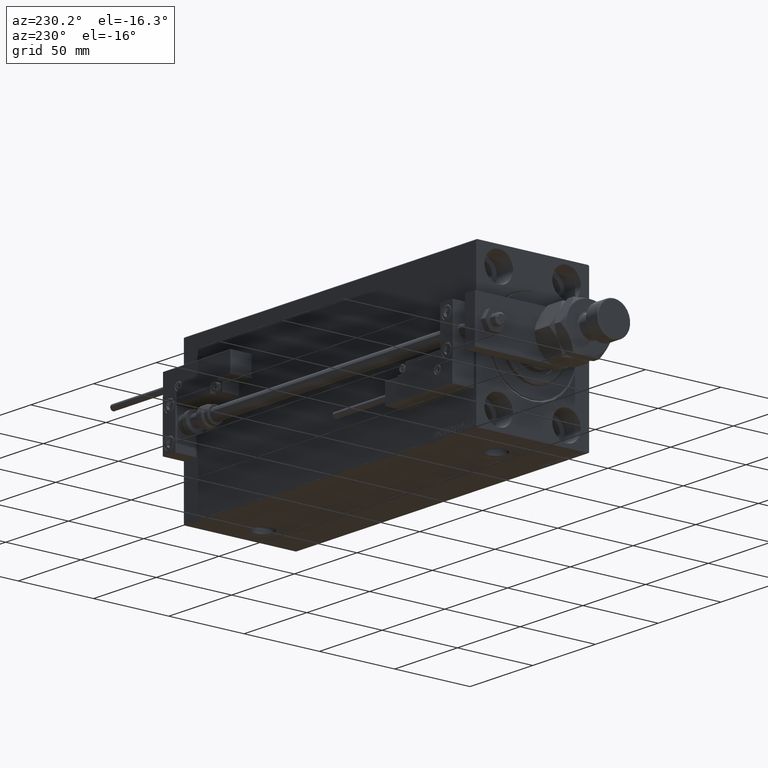
[diagram: clean part render]
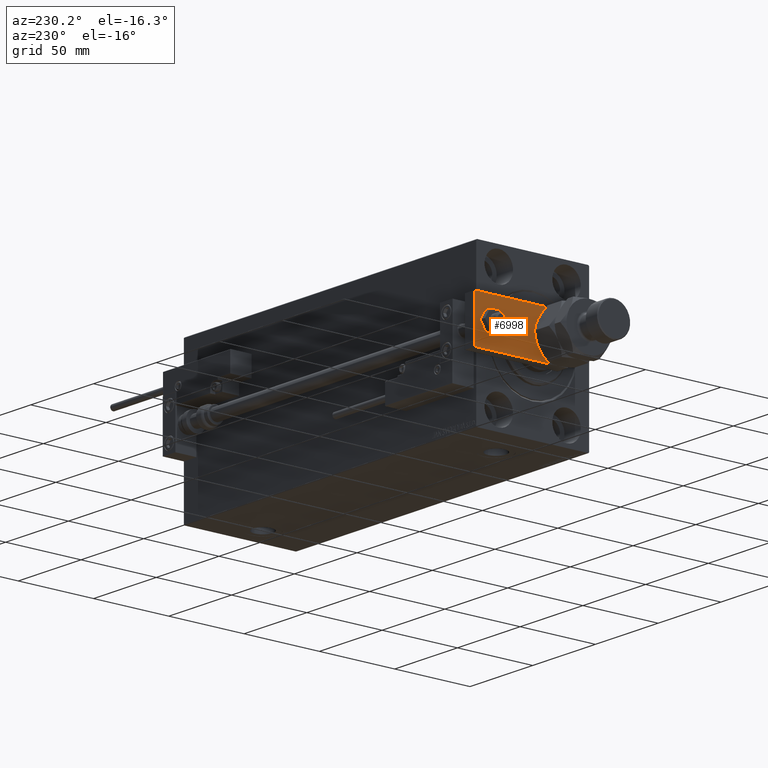
[diagram: same view with one face highlighted and labeled with its STEP entity id]
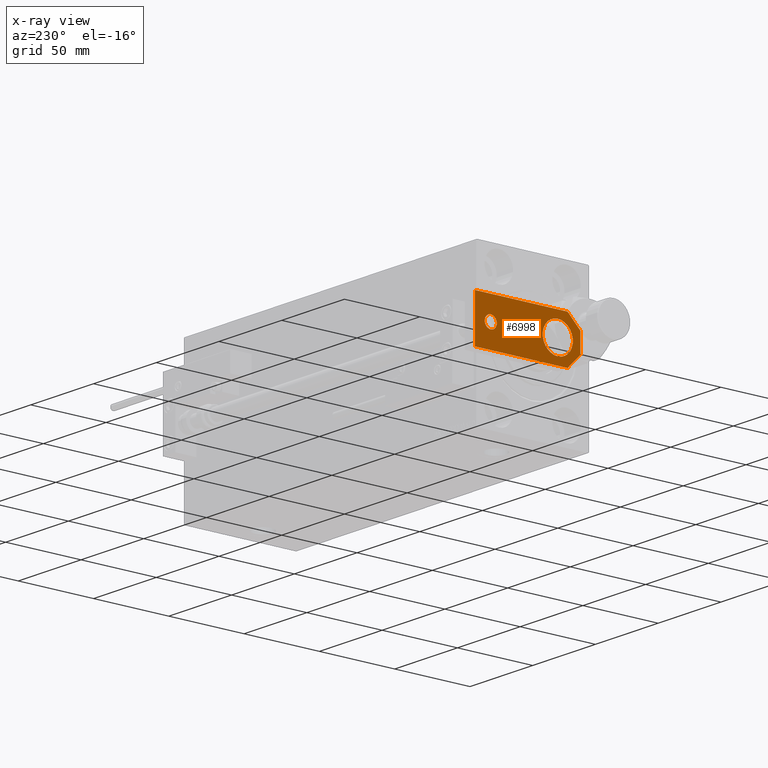
[diagram: x-ray of the same camera — body ghosted, the highlighted face saturated]
A machine part, auxiliary view. The second image highlights one B-rep face of the part: STEP entity #6998.
The next image is the same camera in x-ray: the body ghosted, the highlighted face saturated — about 0% of this face is hidden behind the body in this view.
In plain terms, the highlighted planar face has unit normal (-1, 0, 0).
Its self-contained STEP definition (entity closure, byte-faithful):
#391 = EDGE_CURVE ( 'NONE', #23319, #46363, #17197, .T. ) ;
#394 = EDGE_CURVE ( 'NONE', #16989, #23319, #46307, .T. ) ;
#1773 = VERTEX_POINT ( 'NONE', #10094 ) ;
#1833 = ORIENTED_EDGE ( 'NONE', *, *, #394, .T. ) ;
#2609 = AXIS2_PLACEMENT_3D ( 'NONE', #30870, #23058, #39496 ) ;
#3448 = AXIS2_PLACEMENT_3D ( 'NONE', #38463, #38995, #22548 ) ;
#4305 = CIRCLE ( 'NONE', #3448, 10.00000000000000178 ) ;
#6044 = CARTESIAN_POINT ( 'NONE',  ( -15.00000000000000355, 8.500000000000028422, 8.000000000000000000 ) ) ;
#6214 = VECTOR ( 'NONE', #10652, 1000.000000000000000 ) ;
#6998 = ADVANCED_FACE ( 'NONE', ( #9045, #13367, #9560 ), #41949, .T. ) ;
#9045 = FACE_BOUND ( 'NONE', #21751, .T. ) ;
#9309 = AXIS2_PLACEMENT_3D ( 'NONE', #45738, #13886, #29816 ) ;
#9560 = FACE_BOUND ( 'NONE', #16412, .T. ) ;
#10094 = CARTESIAN_POINT ( 'NONE',  ( 10.00000000000000178, 15.00000000000001243, 8.000000000000000000 ) ) ;
#10616 = AXIS2_PLACEMENT_3D ( 'NONE', #34465, #13997, #22880 ) ;
#10652 = DIRECTION ( 'NONE',  ( 1.000000000000000000, 0.000000000000000000, 0.000000000000000000 ) ) ;
#12986 = DIRECTION ( 'NONE',  ( 0.7071067811865467956, -0.7071067811865483499, 0.000000000000000000 ) ) ;
#13367 = FACE_OUTER_BOUND ( 'NONE', #48543, .T. ) ;
#13886 = DIRECTION ( 'NONE',  ( -0.000000000000000000, 0.000000000000000000, 1.000000000000000000 ) ) ;
#13997 = DIRECTION ( 'NONE',  ( 0.000000000000000000, 0.000000000000000000, 1.000000000000000000 ) ) ;
#14710 = LINE ( 'NONE', #47592, #6214 ) ;
#15516 = EDGE_CURVE ( 'NONE', #41588, #1773, #4305, .T. ) ;
#16412 = EDGE_LOOP ( 'NONE', ( #18154, #51318 ) ) ;
#16989 = VERTEX_POINT ( 'NONE', #31383 ) ;
#17197 = LINE ( 'NONE', #33635, #19342 ) ;
#17653 = CARTESIAN_POINT ( 'NONE',  ( 15.00000000000000000, 70.00000000000000000, 8.000000000000000000 ) ) ;
#17993 = CARTESIAN_POINT ( 'NONE',  ( -3.250000000000003553, -3.249999999999996891, 8.000000000000000000 ) ) ;
#18154 = ORIENTED_EDGE ( 'NONE', *, *, #15516, .F. ) ;
#18829 = DIRECTION ( 'NONE',  ( 0.000000000000000000, 0.000000000000000000, 1.000000000000000000 ) ) ;
#19157 = VERTEX_POINT ( 'NONE', #42484 ) ;
#19342 = VECTOR ( 'NONE', #25810, 1000.000000000000000 ) ;
#19566 = ORIENTED_EDGE ( 'NONE', *, *, #28781, .T. ) ;
#19630 = DIRECTION ( 'NONE',  ( 1.000000000000000000, 0.000000000000000000, 0.000000000000000000 ) ) ;
#20164 = CIRCLE ( 'NONE', #44320, 4.000000000000000888 ) ;
#20657 = EDGE_CURVE ( 'NONE', #46363, #32552, #42180, .T. ) ;
#20883 = VECTOR ( 'NONE', #22466, 1000.000000000000000 ) ;
#21751 = EDGE_LOOP ( 'NONE', ( #26989, #33442 ) ) ;
#22277 = DIRECTION ( 'NONE',  ( 0.7071067811865483499, 0.7071067811865465735, -0.000000000000000000 ) ) ;
#22395 = ORIENTED_EDGE ( 'NONE', *, *, #391, .T. ) ;
#22466 = DIRECTION ( 'NONE',  ( -1.000000000000000000, 0.000000000000000000, 0.000000000000000000 ) ) ;
#22548 = DIRECTION ( 'NONE',  ( 1.000000000000000000, 0.000000000000000000, 0.000000000000000000 ) ) ;
#22880 = DIRECTION ( 'NONE',  ( 1.000000000000000000, 0.000000000000000000, 0.000000000000000000 ) ) ;
#23058 = DIRECTION ( 'NONE',  ( 0.000000000000000000, 0.000000000000000000, 1.000000000000000000 ) ) ;
#23191 = ORIENTED_EDGE ( 'NONE', *, *, #33582, .T. ) ;
#23319 = VERTEX_POINT ( 'NONE', #43342 ) ;
#23772 = VERTEX_POINT ( 'NONE', #34501 ) ;
#24598 = EDGE_CURVE ( 'NONE', #1773, #41588, #25879, .T. ) ;
#25272 = VERTEX_POINT ( 'NONE', #28793 ) ;
#25810 = DIRECTION ( 'NONE',  ( -4.956352788505162775E-17, 1.000000000000000000, 0.000000000000000000 ) ) ;
#25879 = CIRCLE ( 'NONE', #2609, 10.00000000000000178 ) ;
#26989 = ORIENTED_EDGE ( 'NONE', *, *, #36194, .F. ) ;
#27101 = VECTOR ( 'NONE', #36114, 1000.000000000000000 ) ;
#27751 = LINE ( 'NONE', #28568, #27101 ) ;
#28123 = EDGE_CURVE ( 'NONE', #47536, #23772, #38747, .T. ) ;
#28568 = CARTESIAN_POINT ( 'NONE',  ( -14.99999999999999822, 70.00000000000000000, 8.000000000000000000 ) ) ;
#28781 = EDGE_CURVE ( 'NONE', #23772, #16989, #14710, .T. ) ;
#28793 = CARTESIAN_POINT ( 'NONE',  ( -4.000000000000000888, 59.50000000000001421, 8.000000000000000000 ) ) ;
#29816 = DIRECTION ( 'NONE',  ( 1.000000000000000000, 0.000000000000000000, 0.000000000000000000 ) ) ;
#30870 = CARTESIAN_POINT ( 'NONE',  ( -9.629649721936179265E-32, 15.00000000000001066, 8.000000000000000000 ) ) ;
#31383 = CARTESIAN_POINT ( 'NONE',  ( 6.499999999999974243, 0.000000000000000000, 8.000000000000000000 ) ) ;
#31726 = EDGE_CURVE ( 'NONE', #19157, #25272, #52865, .T. ) ;
#31872 = CARTESIAN_POINT ( 'NONE',  ( -10.00000000000000178, 15.00000000000001066, 8.000000000000000000 ) ) ;
#32552 = VERTEX_POINT ( 'NONE', #46631 ) ;
#33156 = VECTOR ( 'NONE', #22277, 1000.000000000000114 ) ;
#33442 = ORIENTED_EDGE ( 'NONE', *, *, #31726, .F. ) ;
#33582 = EDGE_CURVE ( 'NONE', #32552, #47536, #27751, .T. ) ;
#33635 = CARTESIAN_POINT ( 'NONE',  ( 15.00000000000000355, 0.000000000000000000, 8.000000000000000000 ) ) ;
#34465 = CARTESIAN_POINT ( 'NONE',  ( -1.432611055310774642E-16, 59.50000000000001421, 8.000000000000000000 ) ) ;
#34501 = CARTESIAN_POINT ( 'NONE',  ( -6.499999999999993783, 0.000000000000000000, 8.000000000000000000 ) ) ;
#36114 = DIRECTION ( 'NONE',  ( -7.434529182757744162E-17, -1.000000000000000000, 0.000000000000000000 ) ) ;
#36194 = EDGE_CURVE ( 'NONE', #25272, #19157, #20164, .T. ) ;
#36813 = ORIENTED_EDGE ( 'NONE', *, *, #28123, .T. ) ;
#38463 = CARTESIAN_POINT ( 'NONE',  ( -9.629649721936179265E-32, 15.00000000000001066, 8.000000000000000000 ) ) ;
#38679 = ORIENTED_EDGE ( 'NONE', *, *, #20657, .T. ) ;
#38747 = LINE ( 'NONE', #17993, #44118 ) ;
#38995 = DIRECTION ( 'NONE',  ( 0.000000000000000000, 0.000000000000000000, 1.000000000000000000 ) ) ;
#39496 = DIRECTION ( 'NONE',  ( 1.000000000000000000, 0.000000000000000000, 0.000000000000000000 ) ) ;
#40408 = CARTESIAN_POINT ( 'NONE',  ( -1.432611055310774642E-16, 59.50000000000001421, 8.000000000000000000 ) ) ;
#41588 = VERTEX_POINT ( 'NONE', #31872 ) ;
#41949 = PLANE ( 'NONE',  #9309 ) ;
#42180 = LINE ( 'NONE', #51324, #20883 ) ;
#42484 = CARTESIAN_POINT ( 'NONE',  ( 4.000000000000000888, 59.50000000000001421, 8.000000000000000000 ) ) ;
#43342 = CARTESIAN_POINT ( 'NONE',  ( 15.00000000000000355, 8.500000000000007105, 8.000000000000000000 ) ) ;
#44118 = VECTOR ( 'NONE', #12986, 1000.000000000000000 ) ;
#44320 = AXIS2_PLACEMENT_3D ( 'NONE', #40408, #18829, #19630 ) ;
#45738 = CARTESIAN_POINT ( 'NONE',  ( 0.000000000000000000, 0.000000000000000000, 8.000000000000000000 ) ) ;
#46307 = LINE ( 'NONE', #50344, #33156 ) ;
#46363 = VERTEX_POINT ( 'NONE', #17653 ) ;
#46631 = CARTESIAN_POINT ( 'NONE',  ( -14.99999999999999822, 70.00000000000000000, 8.000000000000000000 ) ) ;
#47536 = VERTEX_POINT ( 'NONE', #6044 ) ;
#47592 = CARTESIAN_POINT ( 'NONE',  ( -15.00000000000000355, 0.000000000000000000, 8.000000000000000000 ) ) ;
#48543 = EDGE_LOOP ( 'NONE', ( #23191, #36813, #19566, #1833, #22395, #38679 ) ) ;
#50344 = CARTESIAN_POINT ( 'NONE',  ( 3.249999999999979128, -3.249999999999987121, 8.000000000000000000 ) ) ;
#51318 = ORIENTED_EDGE ( 'NONE', *, *, #24598, .F. ) ;
#51324 = CARTESIAN_POINT ( 'NONE',  ( 15.00000000000000000, 70.00000000000000000, 8.000000000000000000 ) ) ;
#52865 = CIRCLE ( 'NONE', #10616, 4.000000000000000888 ) ;